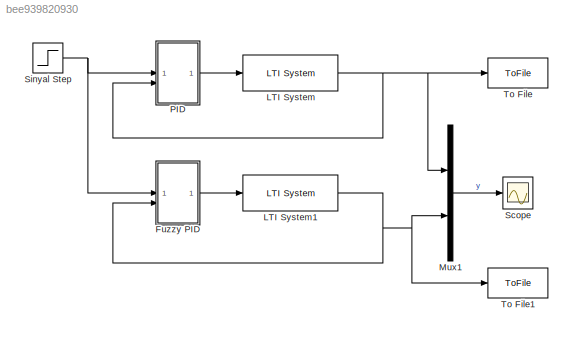
MODEL slx_bee939820930
KIND model
CONFIG AbsTol = auto
CONFIG EnableMultiTasking = on
CONFIG FixedStep = auto
CONFIG MaxStep = auto
CONFIG MinStep = auto
CONFIG PreLoadFcn = Ts = 0.1;\nPlant = c2d(zpk([],[-1 -3 -5],1),Ts);\nC0 = pid(1,1,1,'Ts',Ts,'IF','B','DF','B'); % define PID structure\nC = pidtune(Plant,C0); % design PID\n[Kp Ki Kd] = piddata(C); % obtain PID gains\nFIS = newfis('FIS','sugeno');\nFIS = addvar(FIS,'input','E',[-10 10]);\nFIS = addmf(FIS,'input',1,'Negative','gaussmf',[7 -10]);\nFIS = addmf(FIS,'input',1,'Positive','gaussmf',[7 10]);\nFIS = addvar(FIS,'input...<+858ch>
CONFIG RelTol = 1e-3
CONFIG SampleTimeConstraint = Unconstrained
CONFIG SolverName = FixedStepDiscrete
CONFIG StartTime = 0.0
CONFIG StopTime = 12
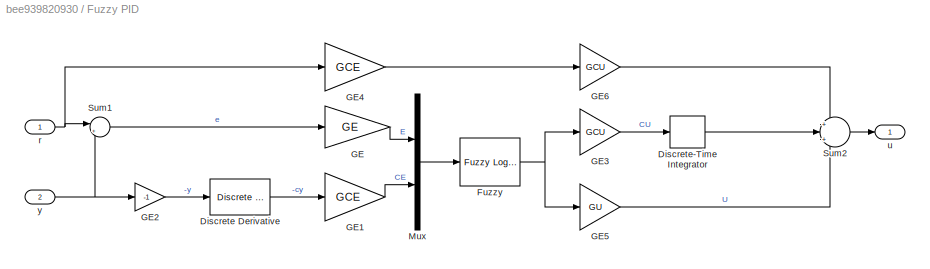
BLOCK [SubSystem] Fuzzy PID
BLOCK [Reference] Fuzzy PID/Discrete Derivative  REF=simulink/Discrete/Discrete Derivative
  SourceBlock = simulink/Discrete/Discrete Derivative
  SourceType = Discrete Derivative
BLOCK [DiscreteIntegrator] Fuzzy PID/Discrete-Time Integrator
  ICPrevOutput = DiscIntNeverNeededParam
  ICPrevScaledInput = DiscIntNeverNeededParam
  IntegratorMethod = Integration: Backward Euler
  SampleTime = Ts
BLOCK [Reference] Fuzzy PID/Fuzzy   REF=fuzblock/Fuzzy Logic   (lib defined in mdl_858b3b3e7478)
Controller
  SourceBlock = fuzblock/Fuzzy Logic \nController
  SourceType = Fuzzy Inference System
BLOCK [Gain] Fuzzy PID/GE
  Gain = GE
BLOCK [Gain] Fuzzy PID/GE1
  Gain = GCE
BLOCK [Gain] Fuzzy PID/GE2
  Gain = -1
BLOCK [Gain] Fuzzy PID/GE3
  Gain = GCU
BLOCK [Gain] Fuzzy PID/GE4
  Gain = GCE
BLOCK [Gain] Fuzzy PID/GE5
  Gain = GU
BLOCK [Gain] Fuzzy PID/GE6
  Gain = GCU
BLOCK [Mux] Fuzzy PID/Mux
  DisplayOption = bar
  Inputs = 2
BLOCK [Sum] Fuzzy PID/Sum1
  Inputs = |+-
BLOCK [Sum] Fuzzy PID/Sum2
  Inputs = +|+|+
BLOCK [Inport] Fuzzy PID/r
BLOCK [Outport] Fuzzy PID/u
BLOCK [Inport] Fuzzy PID/y
  Port = 2
BLOCK [Reference] LTI System  REF=cstblocks/LTI System
  SourceBlock = cstblocks/LTI System
  SourceType = LTI Block
BLOCK [Reference] LTI System1  REF=cstblocks/LTI System
  SourceBlock = cstblocks/LTI System
  SourceType = LTI Block
BLOCK [Mux] Mux1
  DisplayOption = bar
  Inputs = 2
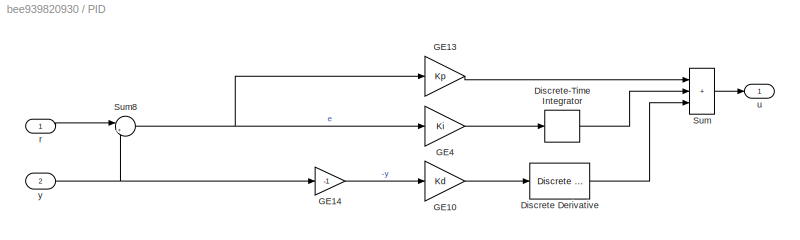
BLOCK [SubSystem] PID
BLOCK [Reference] PID/Discrete Derivative  REF=simulink/Discrete/Discrete Derivative
  SourceBlock = simulink/Discrete/Discrete Derivative
  SourceType = Discrete Derivative
BLOCK [DiscreteIntegrator] PID/Discrete-Time Integrator
  ICPrevOutput = DiscIntNeverNeededParam
  ICPrevScaledInput = DiscIntNeverNeededParam
  IntegratorMethod = Integration: Backward Euler
  SampleTime = Ts
  gainval = 1
BLOCK [Gain] PID/GE10
  Gain = Kd
BLOCK [Gain] PID/GE13
  Gain = Kp
BLOCK [Gain] PID/GE14
  Gain = -1
BLOCK [Gain] PID/GE4
  Gain = Ki
BLOCK [Sum] PID/Sum
  IconShape = rectangular
  Inputs = +++
BLOCK [Sum] PID/Sum8
  Inputs = |+-
BLOCK [Inport] PID/r
BLOCK [Outport] PID/u
BLOCK [Inport] PID/y
  Port = 2
BLOCK [Scope] Scope
  Floating = off
  NumInputPorts = 1
  ScopeSpecificationString = Simulink.scopes.TimeScopeBlockCfg('CurrentConfiguration', extmgr.ConfigurationSet(extmgr.Configuration('Core','General UI',true),extmgr.Configuration('Core','Source UI',true),extmgr.Configuration('Sources','WiredSimulink',true,'DataLoggingSaveFormat','StructureWithTime','DataLoggingLimitDataPoints',true,'DataLoggingDecimation','1','DataLoggingDecimateData',true),extmgr.Configuration('Visuals','Tim...<+1807ch>
BLOCK [Step] Sinyal Step
  SampleTime = 0
BLOCK [ToFile] To File
  Filename = StepPID
  MatrixName = StepPID
BLOCK [ToFile] To File1
  Filename = StepFP
  MatrixName = StepFP
LINE Fuzzy PID/Discrete Derivative:1 -> Fuzzy PID/GE1:1
LINE Fuzzy PID/Discrete-Time Integrator:1 -> Fuzzy PID/Sum2:2
NET Fuzzy PID/Fuzzy :1 -> Fuzzy PID/GE3:1, Fuzzy PID/GE5:1
LINE Fuzzy PID/GE1:1 -> Fuzzy PID/Mux:2
LINE Fuzzy PID/GE2:1 -> Fuzzy PID/Discrete Derivative:1
LINE Fuzzy PID/GE3:1 -> Fuzzy PID/Discrete-Time Integrator:1
LINE Fuzzy PID/GE4:1 -> Fuzzy PID/GE6:1
LINE Fuzzy PID/GE5:1 -> Fuzzy PID/Sum2:3
LINE Fuzzy PID/GE6:1 -> Fuzzy PID/Sum2:1
LINE Fuzzy PID/GE:1 -> Fuzzy PID/Mux:1
LINE Fuzzy PID/Mux:1 -> Fuzzy PID/Fuzzy :1
LINE Fuzzy PID/Sum1:1 -> Fuzzy PID/GE:1
LINE Fuzzy PID/Sum2:1 -> Fuzzy PID/u:1
NET Fuzzy PID/r:1 -> Fuzzy PID/GE4:1, Fuzzy PID/Sum1:1
NET Fuzzy PID/y:1 -> Fuzzy PID/GE2:1, Fuzzy PID/Sum1:2
LINE Fuzzy PID:1 -> LTI System1:1
NET LTI System1:1 -> Fuzzy PID:2, Mux1:2, To File1:1
NET LTI System:1 -> Mux1:1, PID:2, To File:1
LINE Mux1:1 -> Scope:1
LINE PID/Discrete Derivative:1 -> PID/Sum:3
LINE PID/Discrete-Time Integrator:1 -> PID/Sum:2
LINE PID/GE10:1 -> PID/Discrete Derivative:1
LINE PID/GE13:1 -> PID/Sum:1
LINE PID/GE14:1 -> PID/GE10:1
LINE PID/GE4:1 -> PID/Discrete-Time Integrator:1
NET PID/Sum8:1 -> PID/GE13:1, PID/GE4:1
LINE PID/Sum:1 -> PID/u:1
LINE PID/r:1 -> PID/Sum8:1
NET PID/y:1 -> PID/GE14:1, PID/Sum8:2
LINE PID:1 -> LTI System:1
NET Sinyal Step:1 -> Fuzzy PID:1, PID:1
note: NET lines group one-source signal fan-out (src -> all destinations, sorted); 1:1 wires keep LINE
